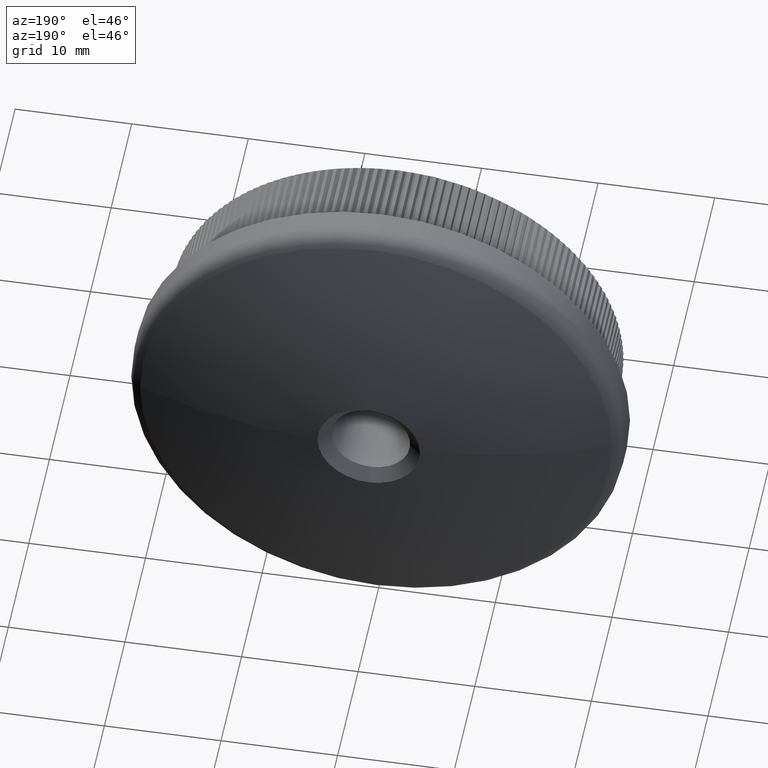
[diagram: clean part render]
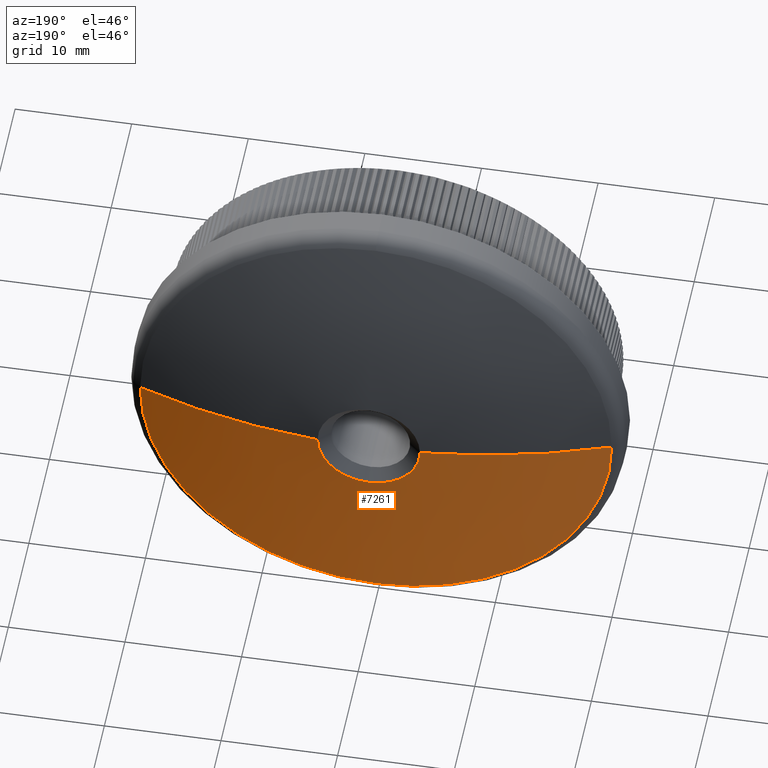
[diagram: same view with one face highlighted and labeled with its STEP entity id]
A machine part, auxiliary view. The second image highlights one B-rep face of the part: STEP entity #7261.
In plain terms, the highlighted spherical surface has radius 58.18 mm.
Its self-contained STEP definition (entity closure, byte-faithful):
#12 = CARTESIAN_POINT ( 'NONE',  ( 0.0000000000000000000, 11.37281375303810000, 0.0000000000000000000 ) ) ;
#1473 = CARTESIAN_POINT ( 'NONE',  ( 0.0000000000000000000, -43.18000000000007100, 0.0000000000000000000 ) ) ;
#1804 = CARTESIAN_POINT ( 'NONE',  ( 0.0000000000000000000, -43.18000000000007100, 0.0000000000000000000 ) ) ;
#2082 = CIRCLE ( 'NONE', #24806, 20.22134791813691000 ) ;
#2391 = DIRECTION ( 'NONE',  ( 0.0000000000000000000, 0.0000000000000000000, -1.000000000000000000 ) ) ;
#2700 = VERTEX_POINT ( 'NONE', #16080 ) ;
#3065 = ORIENTED_EDGE ( 'NONE', *, *, #7115, .T. ) ;
#3203 = ORIENTED_EDGE ( 'NONE', *, *, #29563, .F. ) ;
#4102 = DIRECTION ( 'NONE',  ( 0.0000000000000000000, 0.0000000000000000000, -1.000000000000000000 ) ) ;
#5141 = EDGE_CURVE ( 'NONE', #9774, #25352, #19929, .T. ) ;
#5191 = DIRECTION ( 'NONE',  ( 0.0000000000000000000, 0.0000000000000000000, -1.000000000000000000 ) ) ;
#6058 = CIRCLE ( 'NONE', #16993, 58.18000000000007100 ) ;
#6254 = DIRECTION ( 'NONE',  ( 0.0000000000000000000, 0.0000000000000000000, -1.000000000000000000 ) ) ;
#7115 = EDGE_CURVE ( 'NONE', #15063, #9040, #12084, .T. ) ;
#7261 = ADVANCED_FACE ( 'NONE', ( #28824 ), #12442, .T. ) ;
#7434 = AXIS2_PLACEMENT_3D ( 'NONE', #10141, #19467, #29128 ) ;
#7617 = CARTESIAN_POINT ( 'NONE',  ( 4.389361584043620600, 14.83418710009236300, 0.0000000000000000000 ) ) ;
#8457 = DIRECTION ( 'NONE',  ( -0.0000000000000000000, -1.000000000000000000, -0.0000000000000000000 ) ) ;
#8632 = DIRECTION ( 'NONE',  ( -1.000000000000000000, 0.0000000000000000000, 0.0000000000000000000 ) ) ;
#8810 = DIRECTION ( 'NONE',  ( 1.000000000000000000, 0.0000000000000000000, -1.224646799147353500E-016 ) ) ;
#9040 = VERTEX_POINT ( 'NONE', #7617 ) ;
#9774 = VERTEX_POINT ( 'NONE', #27485 ) ;
#10065 = DIRECTION ( 'NONE',  ( -0.0000000000000000000, -1.000000000000000000, -0.0000000000000000000 ) ) ;
#10141 = CARTESIAN_POINT ( 'NONE',  ( 0.0000000000000000000, 11.37281375303810000, 0.0000000000000000000 ) ) ;
#10756 = CARTESIAN_POINT ( 'NONE',  ( -4.389361584043620600, 14.83418710009236300, 1.506971330829536000E-015 ) ) ;
#11517 = ORIENTED_EDGE ( 'NONE', *, *, #5141, .T. ) ;
#11689 = AXIS2_PLACEMENT_3D ( 'NONE', #15001, #10065, #5191 ) ;
#12084 = CIRCLE ( 'NONE', #28764, 4.389361584043620600 ) ;
#12442 = SPHERICAL_SURFACE ( 'NONE', #20188, 58.18000000000007100 ) ;
#13061 = CARTESIAN_POINT ( 'NONE',  ( 0.0000000000000000000, 11.37281375303810000, -20.22134791813691000 ) ) ;
#13093 = CIRCLE ( 'NONE', #11689, 4.389361584043620600 ) ;
#13295 = CARTESIAN_POINT ( 'NONE',  ( 0.0000000000000000000, 14.83418710009236300, 0.0000000000000000000 ) ) ;
#15001 = CARTESIAN_POINT ( 'NONE',  ( 0.0000000000000000000, 14.83418710009236300, 0.0000000000000000000 ) ) ;
#15063 = VERTEX_POINT ( 'NONE', #24517 ) ;
#15568 = VERTEX_POINT ( 'NONE', #10756 ) ;
#16080 = CARTESIAN_POINT ( 'NONE',  ( -20.22134791813689200, 11.37281375303809700, 2.476400900239134100E-015 ) ) ;
#16132 = CARTESIAN_POINT ( 'NONE',  ( 0.0000000000000000000, -43.18000000000007100, 0.0000000000000000000 ) ) ;
#16570 = DIRECTION ( 'NONE',  ( 0.0000000000000000000, 1.000000000000000000, 0.0000000000000000000 ) ) ;
#16993 = AXIS2_PLACEMENT_3D ( 'NONE', #1473, #6254, #8632 ) ;
#18568 = DIRECTION ( 'NONE',  ( 1.000000000000000000, 0.0000000000000000000, 0.0000000000000000000 ) ) ;
#19277 = EDGE_CURVE ( 'NONE', #9040, #9774, #6058, .T. ) ;
#19467 = DIRECTION ( 'NONE',  ( 0.0000000000000000000, 1.000000000000000000, 0.0000000000000000000 ) ) ;
#19708 = EDGE_LOOP ( 'NONE', ( #3203, #27462, #3065, #23406, #11517, #23806 ) ) ;
#19929 = CIRCLE ( 'NONE', #7434, 20.22134791813691000 ) ;
#20188 = AXIS2_PLACEMENT_3D ( 'NONE', #1804, #25994, #18568 ) ;
#20686 = EDGE_CURVE ( 'NONE', #25352, #2700, #2082, .T. ) ;
#23406 = ORIENTED_EDGE ( 'NONE', *, *, #19277, .T. ) ;
#23419 = EDGE_CURVE ( 'NONE', #15568, #15063, #13093, .T. ) ;
#23806 = ORIENTED_EDGE ( 'NONE', *, *, #20686, .T. ) ;
#24115 = CIRCLE ( 'NONE', #26114, 58.18000000000007100 ) ;
#24517 = CARTESIAN_POINT ( 'NONE',  ( 5.375417614199396000E-016, 14.83418710009236300, -4.389361584043635700 ) ) ;
#24806 = AXIS2_PLACEMENT_3D ( 'NONE', #12, #16570, #2391 ) ;
#25352 = VERTEX_POINT ( 'NONE', #13061 ) ;
#25994 = DIRECTION ( 'NONE',  ( 0.0000000000000000000, 0.0000000000000000000, 1.000000000000000000 ) ) ;
#26114 = AXIS2_PLACEMENT_3D ( 'NONE', #16132, #28112, #8810 ) ;
#27462 = ORIENTED_EDGE ( 'NONE', *, *, #23419, .T. ) ;
#27485 = CARTESIAN_POINT ( 'NONE',  ( 20.22134791813689200, 11.37281375303809700, 0.0000000000000000000 ) ) ;
#28112 = DIRECTION ( 'NONE',  ( 1.224646799147353200E-016, -0.0000000000000000000, 1.000000000000000000 ) ) ;
#28764 = AXIS2_PLACEMENT_3D ( 'NONE', #13295, #8457, #4102 ) ;
#28824 = FACE_OUTER_BOUND ( 'NONE', #19708, .T. ) ;
#29128 = DIRECTION ( 'NONE',  ( 0.0000000000000000000, 0.0000000000000000000, -1.000000000000000000 ) ) ;
#29563 = EDGE_CURVE ( 'NONE', #15568, #2700, #24115, .T. ) ;